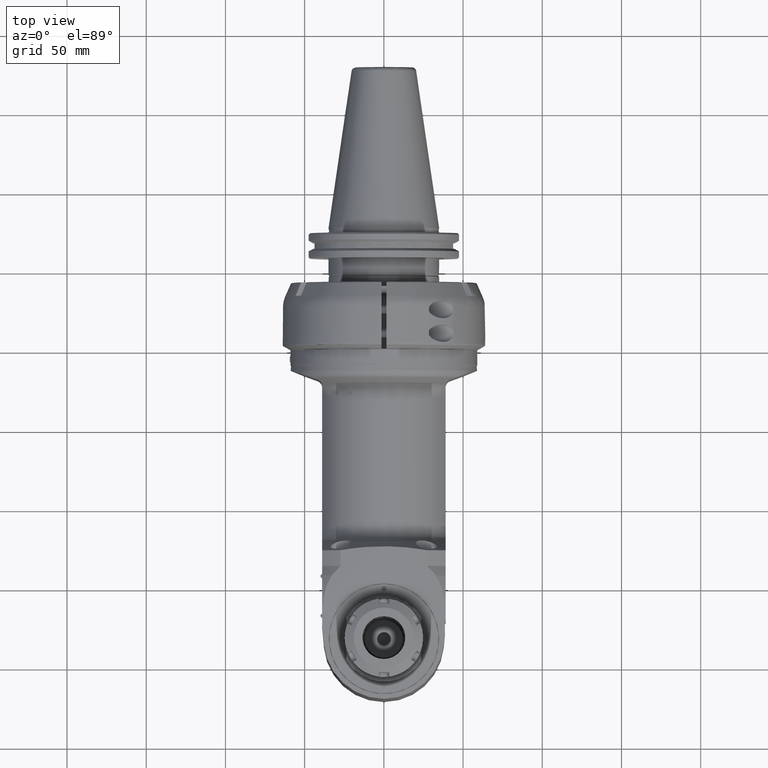
[diagram: clean part render]
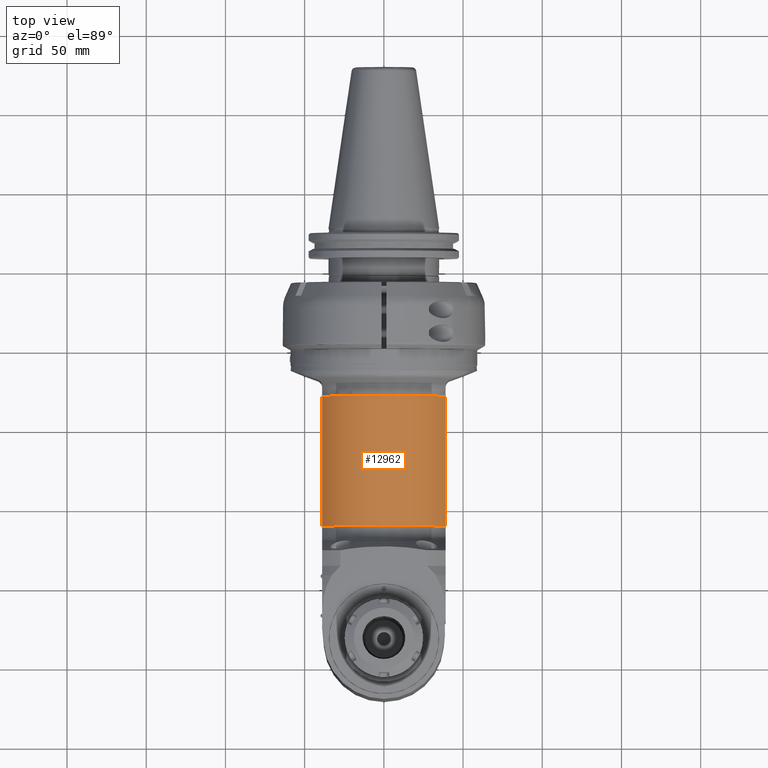
[diagram: same view with one face highlighted and labeled with its STEP entity id]
A machine part, top view. The second image highlights one B-rep face of the part: STEP entity #12962.
In plain terms, the highlighted cylindrical surface (partial cylindrical patch) has radius 42.5 mm, axis along (0, 1, 0).
Its self-contained STEP definition (entity closure, byte-faithful):
#569=CYLINDRICAL_SURFACE('',#14192,42.5);
#1145=CIRCLE('',#14191,42.5);
#1146=CIRCLE('',#14193,42.5);
#1706=FACE_OUTER_BOUND('',#2439,.T.);
#2439=EDGE_LOOP('',(#10423,#10424,#10425,#10426));
#3550=LINE('',#35098,#4497);
#3569=LINE('',#35273,#4516);
#4497=VECTOR('',#16660,81.96427638556);
#4516=VECTOR('',#16697,81.96427638612);
#5659=VERTEX_POINT('',#35084);
#5660=VERTEX_POINT('',#35097);
#5700=VERTEX_POINT('',#35255);
#5701=VERTEX_POINT('',#35272);
#7327=EDGE_CURVE('',#5660,#5659,#3550,.T.);
#7373=EDGE_CURVE('',#5701,#5700,#3569,.T.);
#7468=EDGE_CURVE('',#5701,#5659,#1145,.T.);
#7469=EDGE_CURVE('',#5660,#5700,#1146,.T.);
#10423=ORIENTED_EDGE('',*,*,#7469,.F.);
#10424=ORIENTED_EDGE('',*,*,#7327,.T.);
#10425=ORIENTED_EDGE('',*,*,#7468,.F.);
#10426=ORIENTED_EDGE('',*,*,#7373,.T.);
#12962=ADVANCED_FACE('',(#1706),#569,.T.);
#14191=AXIS2_PLACEMENT_3D('',#35808,#16840,#16841);
#14192=AXIS2_PLACEMENT_3D('',#35809,#16842,#16843);
#14193=AXIS2_PLACEMENT_3D('',#35810,#16844,#16845);
#16660=DIRECTION('',(-1.,0.,0.));
#16697=DIRECTION('',(1.,0.,0.));
#16840=DIRECTION('center_axis',(-1.,0.,0.));
#16841=DIRECTION('ref_axis',(0.,-0.397396370683616,-0.917647058823538));
#16842=DIRECTION('center_axis',(-1.,0.,0.));
#16843=DIRECTION('ref_axis',(0.,-1.,3.21624529935327E-16));
#16844=DIRECTION('center_axis',(1.,0.,0.));
#16845=DIRECTION('ref_axis',(0.,-1.,0.));
#35084=CARTESIAN_POINT('',(19.29063844602,-16.88934575405,39.));
#35097=CARTESIAN_POINT('',(101.2549148316,-16.88934575405,39.));
#35098=CARTESIAN_POINT('',(101.2549148316,-16.88934575405,39.));
#35255=CARTESIAN_POINT('',(101.2549148316,-16.88934575405,-39.));
#35272=CARTESIAN_POINT('',(19.29063844602,-16.88934575405,-39.));
#35273=CARTESIAN_POINT('',(19.29063844602,-16.88934575405,-39.));
#35808=CARTESIAN_POINT('Origin',(19.29063844602,0.,0.));
#35809=CARTESIAN_POINT('Origin',(45.,0.,0.));
#35810=CARTESIAN_POINT('Origin',(101.2549148316,0.,0.));